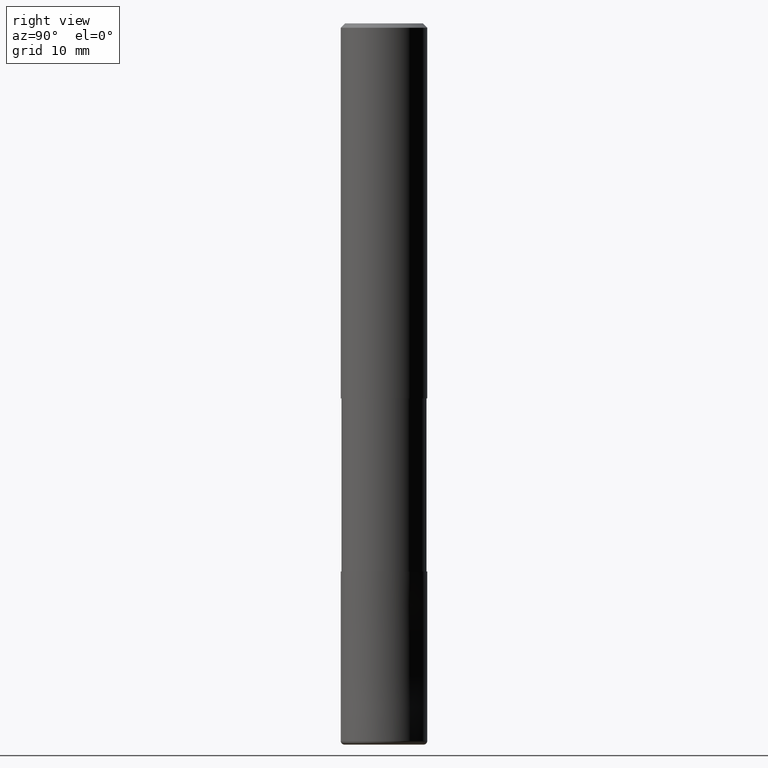
[diagram: clean part render]
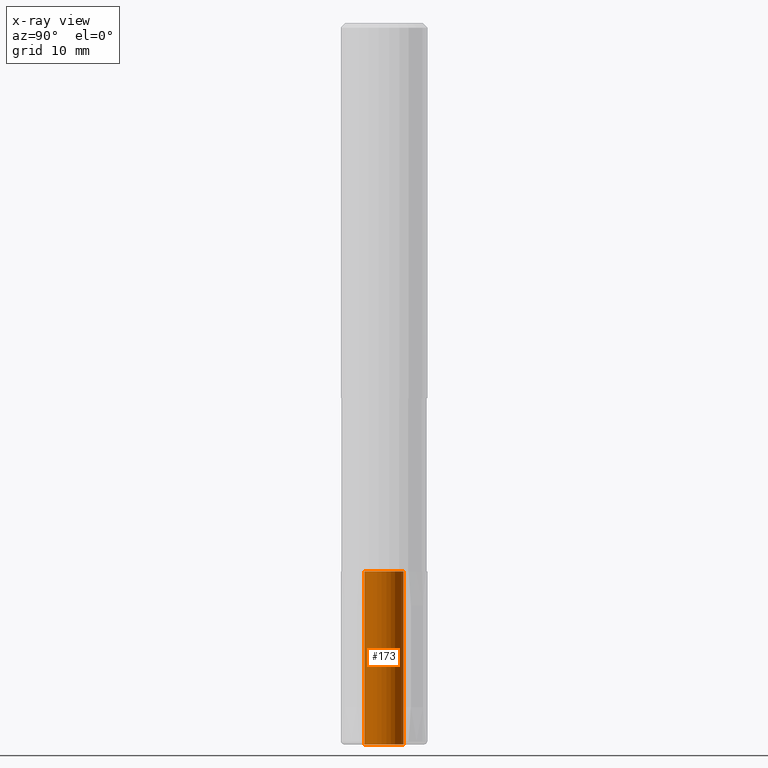
[diagram: x-ray — body ghosted, one internal face saturated and labeled with its STEP entity id]
A machine part, right view, then the same camera in x-ray: the body is ghosted and one INTERNAL B-rep face — a face not visible from any outside direction — is saturated and labeled: STEP entity #173.
In plain terms, the highlighted cylindrical surface (edge-blend (fillet) strip) has radius 2.7 mm, axis along (-0, -0, 1).
Its self-contained STEP definition (entity closure, byte-faithful):
#139=VERTEX_POINT('',#328);
#173=ADVANCED_FACE('',(#366),#367,.F.);
#175=EDGE_CURVE('',#245,#139,#369,.T.);
#177=EDGE_CURVE('',#245,#237,#371,.T.);
#225=EDGE_CURVE('',#237,#249,#429,.T.);
#237=VERTEX_POINT('',#443);
#245=VERTEX_POINT('',#452);
#249=VERTEX_POINT('',#456);
#273=EDGE_CURVE('',#249,#139,#483,.T.);
#328=CARTESIAN_POINT('',(3.30643715532042E-016,-2.7,-76.0));
#366=FACE_OUTER_BOUND('',#584,.T.);
#367=CYLINDRICAL_SURFACE('',#585,2.7);
#369=CIRCLE('',#588,2.7);
#371=LINE('',#591,#592);
#429=CIRCLE('',#667,2.7);
#443=CARTESIAN_POINT('',(0.0,2.7,-100.0));
#452=CARTESIAN_POINT('',(0.0,2.7,-76.0));
#456=CARTESIAN_POINT('',(3.30643715532042E-016,-2.7,-100.0));
#483=LINE('',#731,#732);
#584=EDGE_LOOP('',(#824,#825,#826,#827));
#585=AXIS2_PLACEMENT_3D('',#828,#829,#830);
#588=AXIS2_PLACEMENT_3D('',#831,#832,#833);
#591=CARTESIAN_POINT('',(-3.30643715532042E-016,2.7,-88.0));
#592=VECTOR('',#834,1.0);
#667=AXIS2_PLACEMENT_3D('',#914,#915,#916);
#731=CARTESIAN_POINT('',(3.30643715532042E-016,-2.7,-88.0));
#732=VECTOR('',#980,1.0);
#824=ORIENTED_EDGE('',*,*,#177,.T.);
#825=ORIENTED_EDGE('',*,*,#225,.T.);
#826=ORIENTED_EDGE('',*,*,#273,.T.);
#827=ORIENTED_EDGE('',*,*,#175,.F.);
#828=CARTESIAN_POINT('',(0.0,0.0,-88.0));
#829=DIRECTION('',(-0.0,-0.0,1.0));
#830=DIRECTION('',(0.0,1.0,0.0));
#831=CARTESIAN_POINT('',(0.0,0.0,-76.0));
#832=DIRECTION('',(0.0,0.0,-1.0));
#833=DIRECTION('',(0.0,1.0,0.0));
#834=DIRECTION('',(0.0,-0.0,-1.0));
#914=CARTESIAN_POINT('',(0.0,0.0,-100.0));
#915=DIRECTION('',(0.0,0.0,-1.0));
#916=DIRECTION('',(0.0,1.0,0.0));
#980=DIRECTION('',(0.0,-0.0,1.0));